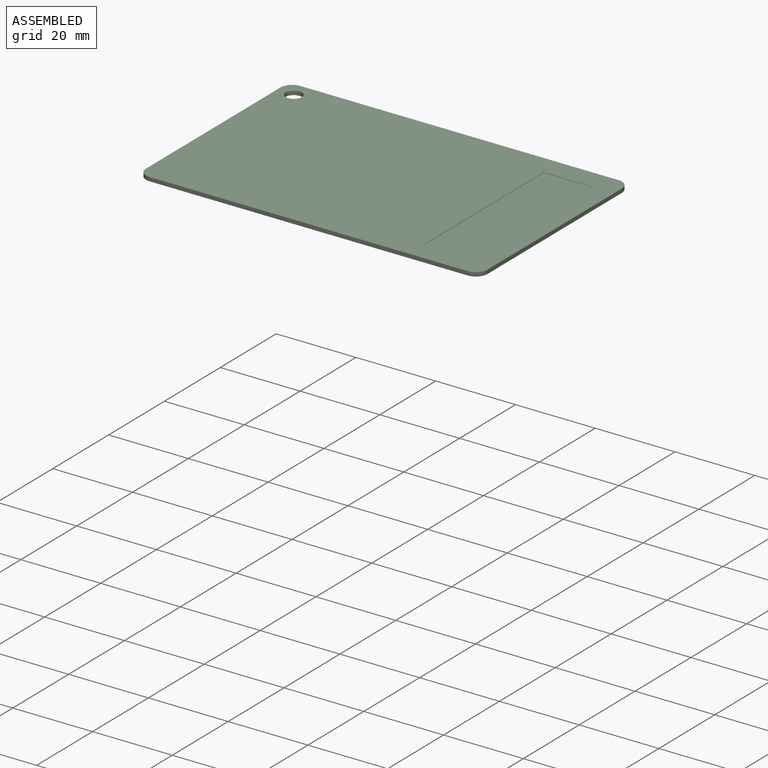
[diagram: assembled view]
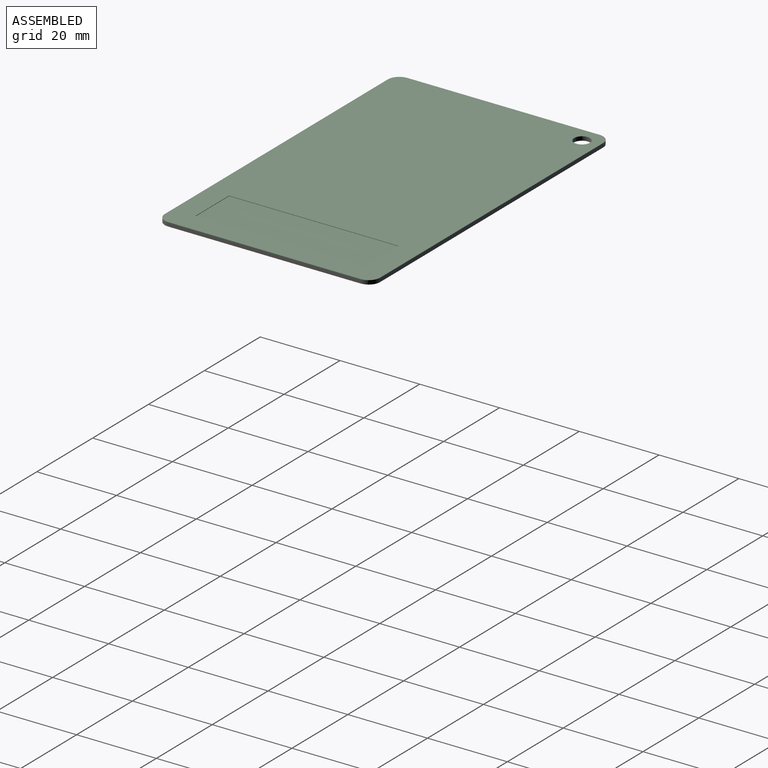
[diagram: assembled view, second angle]
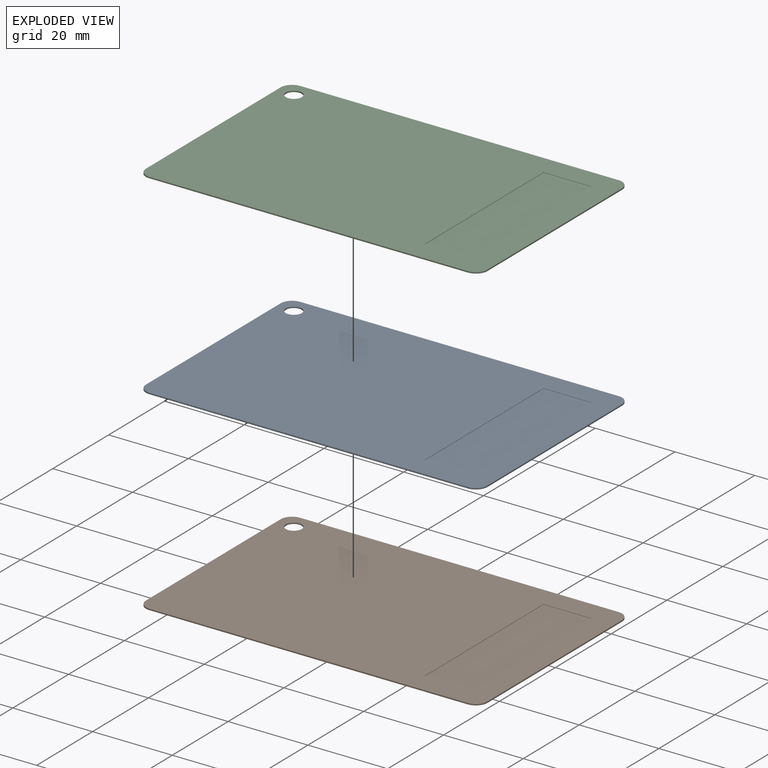
[diagram: exploded view]
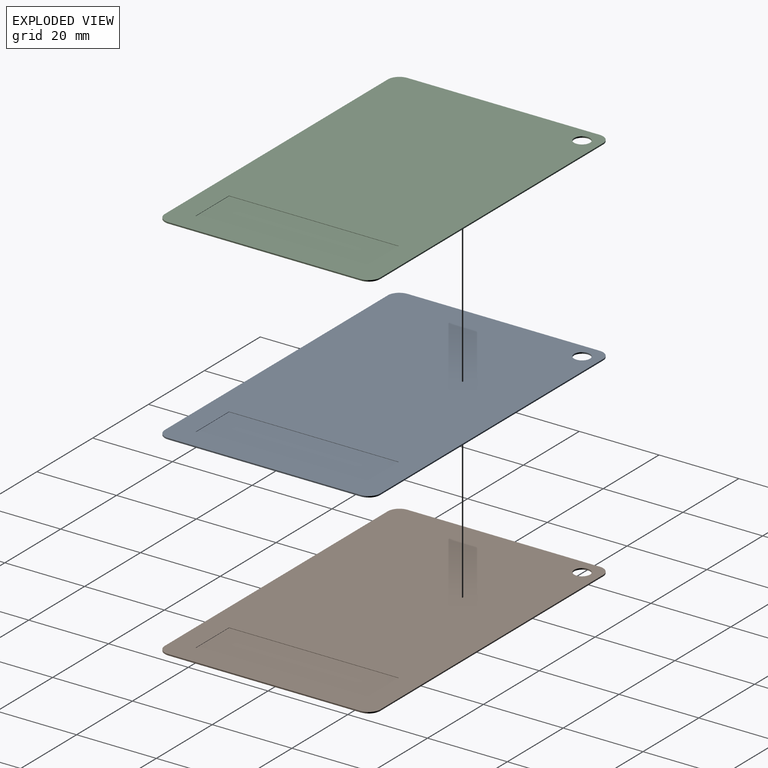
[diagram: exploded view, second angle]
ASSEMBLY  parts=3 mates=2
PART A: 16 faces, bbox 85.6x54x0.3 mm
  f0: plane 85.6x53.98mm, normal (0,0,1), area 4090.2mm2, adj f1,f2,f3,f4,f5,f6,f7,f8
  f1: plane 48.22x0.33mm, normal (-1,0,0), area 16.1mm2, adj f0,f2,f9,f10
  f2: cylinder r=2.88mm len=2.88mm, axis (0,0,1), area 1.5mm2, adj f0,f1,f3,f10
  f3: plane 79.84x0.33mm, normal (0,-1,0), area 26.6mm2, adj f0,f2,f4,f10
  f4: cylinder r=2.88mm len=2.88mm, axis (0,0,1), area 1.5mm2, adj f0,f3,f5,f10
  f5: plane 48.22x0.33mm, normal (1,0,0), area 16.1mm2, adj f0,f4,f6,f10
  f6: cylinder r=2.88mm len=2.88mm, axis (0,0,1), area 1.5mm2, adj f0,f5,f7,f10
  f7: plane 79.84x0.33mm, normal (0,1,0), area 26.6mm2, adj f0,f6,f9,f10
  f8: cylinder r=2mm len=4mm, axis (0,0,1), area 4.2mm2, adj f0,f10
  f9: cylinder r=2.88mm len=2.88mm, axis (0,0,1), area 1.5mm2, adj f0,f1,f7,f10
  f10: plane 85.6x53.98mm, normal (0,0,-1), area 4601mm2, adj f1,f2,f3,f4,f5,f6,f7,f8
  f11: plane 42.56x0.1mm, normal (-1,0,0), area 4.3mm2, adj f0,f12,f14,f15
  f12: plane 12x0.1mm, normal (0,-1,0), area 1.2mm2, adj f0,f11,f13,f15
  f13: plane 42.56x0.1mm, normal (1,0,0), area 4.3mm2, adj f0,f12,f14,f15
  f14: plane 12x0.1mm, normal (0,1,0), area 1.2mm2, adj f0,f11,f13,f15
  f15: plane 42.56x12mm, normal (0,0,1), area 510.8mm2, adj f11,f12,f13,f14
PART B: same geometry as A
PART C: same geometry as A
PLACE A t=(-2.47,-0.66,1.66)mm
PLACE B t=(-2.47,-0.66,1.32)mm
PLACE C t=(-2.47,-0.66,1.99)mm
MATE fastened A.f8 <-> B.f8  axis (0,0,-1) through (-40.98,22.04,1.32)mm
MATE fastened C.f8 <-> A.f8  axis (0,0,-1) through (-40.98,22.04,1.66)mm
